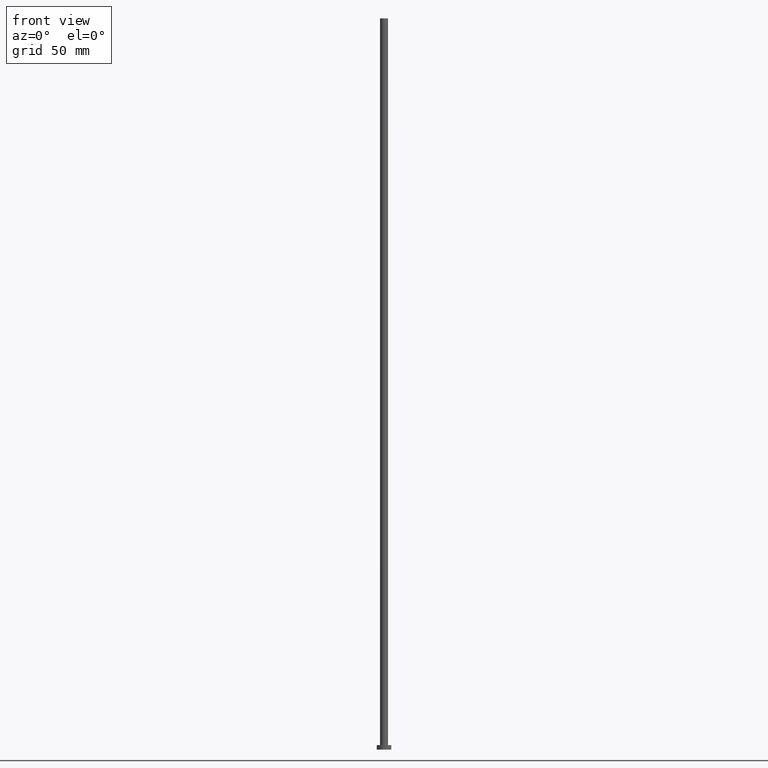
[diagram: clean part render]
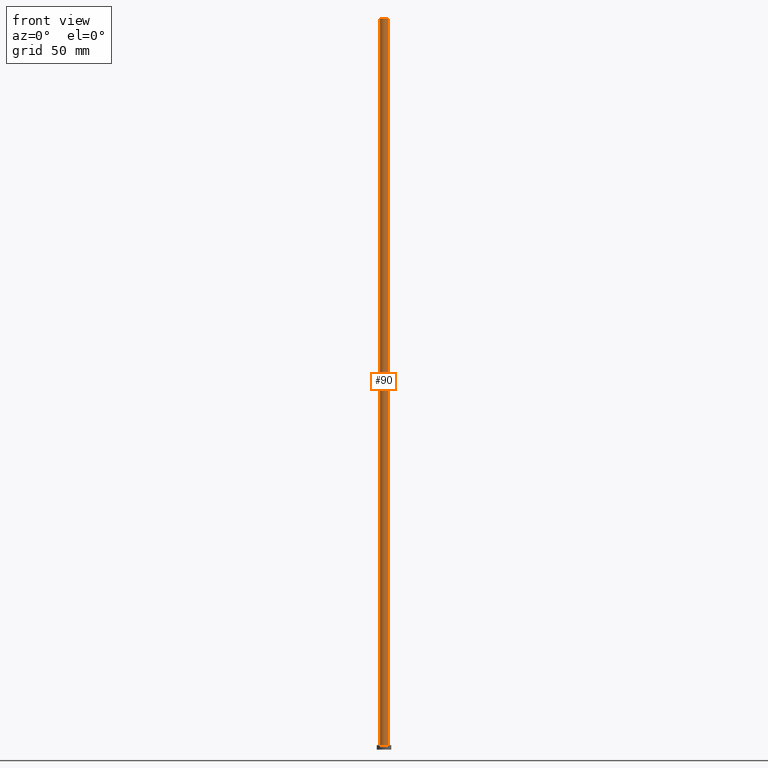
[diagram: same view with one face highlighted and labeled with its STEP entity id]
A machine part, front view. The second image highlights one B-rep face of the part: STEP entity #90.
In plain terms, the highlighted cylindrical surface (edge-blend (fillet) strip) has radius 2.75 mm, axis along (-0, -0, -1).
Its self-contained STEP definition (entity closure, byte-faithful):
#1 = CYLINDRICAL_SURFACE ( 'NONE', #105, 2.750000000000000000 ) ;
#5 = CARTESIAN_POINT ( 'NONE',  ( -2.750000000000000000, 0.000000000000000000, 500.0000000000000000 ) ) ;
#6 = VERTEX_POINT ( 'NONE', #219 ) ;
#9 = CIRCLE ( 'NONE', #60, 2.750000000000000000 ) ;
#21 = ORIENTED_EDGE ( 'NONE', *, *, #190, .F. ) ;
#26 = LINE ( 'NONE', #62, #95 ) ;
#36 = EDGE_CURVE ( 'NONE', #134, #119, #9, .T. ) ;
#40 = VECTOR ( 'NONE', #55, 1000.000000000000000 ) ;
#55 = DIRECTION ( 'NONE',  ( -0.000000000000000000, -0.000000000000000000, -1.000000000000000000 ) ) ;
#60 = AXIS2_PLACEMENT_3D ( 'NONE', #136, #220, #146 ) ;
#62 = CARTESIAN_POINT ( 'NONE',  ( 2.750000000000000000, 3.367778697655220519E-16, 500.0000000000000000 ) ) ;
#63 = CARTESIAN_POINT ( 'NONE',  ( 2.750000000000000000, 3.367778697655220519E-16, 3.000000000000000000 ) ) ;
#68 = AXIS2_PLACEMENT_3D ( 'NONE', #242, #79, #76 ) ;
#76 = DIRECTION ( 'NONE',  ( 1.000000000000000000, 0.000000000000000000, 0.000000000000000000 ) ) ;
#79 = DIRECTION ( 'NONE',  ( 0.000000000000000000, 0.000000000000000000, 1.000000000000000000 ) ) ;
#84 = DIRECTION ( 'NONE',  ( -0.000000000000000000, -0.000000000000000000, -1.000000000000000000 ) ) ;
#90 = ADVANCED_FACE ( 'NONE', ( #183 ), #1, .T. ) ;
#95 = VECTOR ( 'NONE', #249, 1000.000000000000000 ) ;
#99 = ORIENTED_EDGE ( 'NONE', *, *, #36, .F. ) ;
#105 = AXIS2_PLACEMENT_3D ( 'NONE', #252, #84, #131 ) ;
#112 = ORIENTED_EDGE ( 'NONE', *, *, #225, .T. ) ;
#118 = ORIENTED_EDGE ( 'NONE', *, *, #229, .T. ) ;
#119 = VERTEX_POINT ( 'NONE', #235 ) ;
#131 = DIRECTION ( 'NONE',  ( -1.000000000000000000, 0.000000000000000000, 0.000000000000000000 ) ) ;
#134 = VERTEX_POINT ( 'NONE', #189 ) ;
#136 = CARTESIAN_POINT ( 'NONE',  ( 0.000000000000000000, 0.000000000000000000, 500.0000000000000000 ) ) ;
#140 = CIRCLE ( 'NONE', #68, 2.750000000000000000 ) ;
#146 = DIRECTION ( 'NONE',  ( 1.000000000000000000, 0.000000000000000000, 0.000000000000000000 ) ) ;
#175 = LINE ( 'NONE', #5, #40 ) ;
#177 = VERTEX_POINT ( 'NONE', #63 ) ;
#183 = FACE_OUTER_BOUND ( 'NONE', #202, .T. ) ;
#189 = CARTESIAN_POINT ( 'NONE',  ( -2.750000000000000000, 0.000000000000000000, 500.0000000000000000 ) ) ;
#190 = EDGE_CURVE ( 'NONE', #119, #177, #26, .T. ) ;
#202 = EDGE_LOOP ( 'NONE', ( #21, #99, #112, #118 ) ) ;
#219 = CARTESIAN_POINT ( 'NONE',  ( -2.750000000000000000, 0.000000000000000000, 3.000000000000000000 ) ) ;
#220 = DIRECTION ( 'NONE',  ( 0.000000000000000000, 0.000000000000000000, 1.000000000000000000 ) ) ;
#225 = EDGE_CURVE ( 'NONE', #134, #6, #175, .T. ) ;
#229 = EDGE_CURVE ( 'NONE', #6, #177, #140, .T. ) ;
#235 = CARTESIAN_POINT ( 'NONE',  ( 2.750000000000000000, 3.367778697655220519E-16, 500.0000000000000000 ) ) ;
#242 = CARTESIAN_POINT ( 'NONE',  ( 0.000000000000000000, 0.000000000000000000, 3.000000000000000000 ) ) ;
#249 = DIRECTION ( 'NONE',  ( -0.000000000000000000, -0.000000000000000000, -1.000000000000000000 ) ) ;
#252 = CARTESIAN_POINT ( 'NONE',  ( 0.000000000000000000, 0.000000000000000000, 500.0000000000000000 ) ) ;